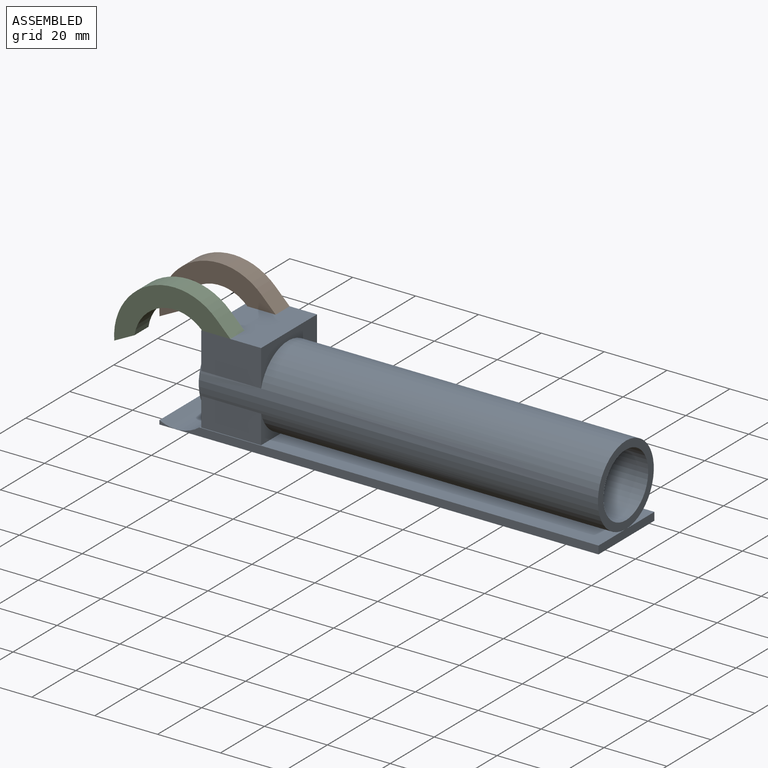
[diagram: assembled view]
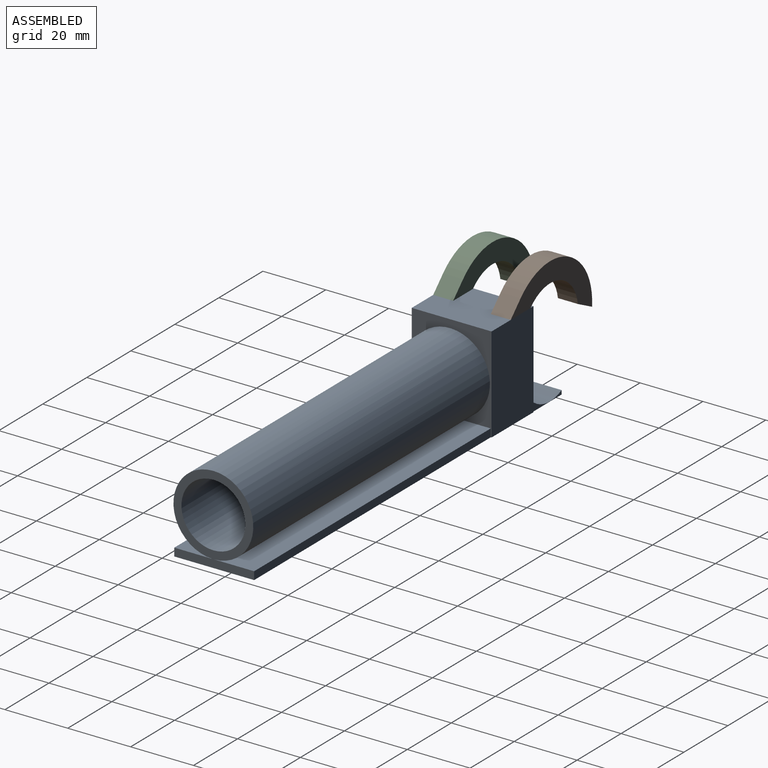
[diagram: assembled view, second angle]
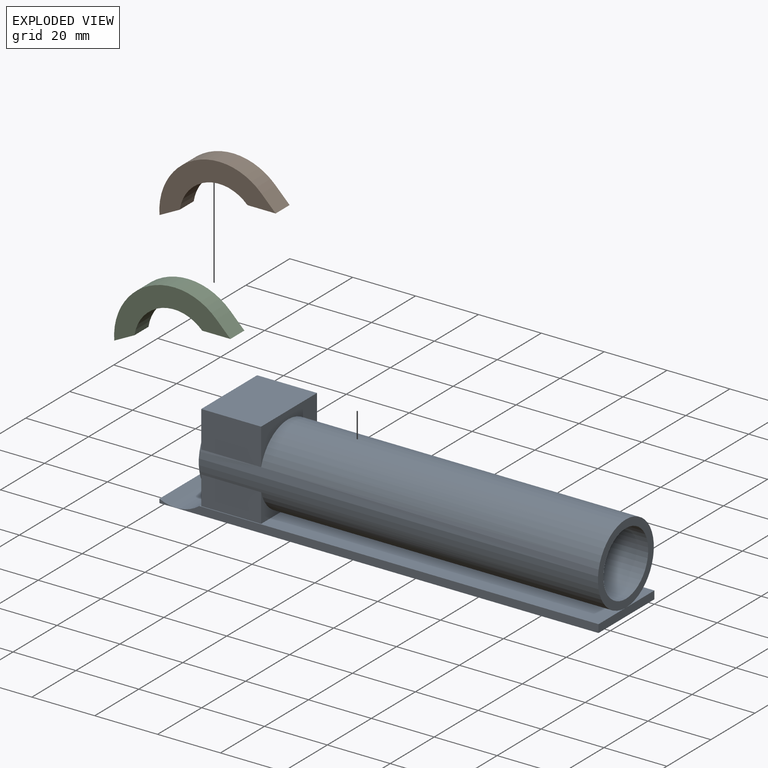
[diagram: exploded view]
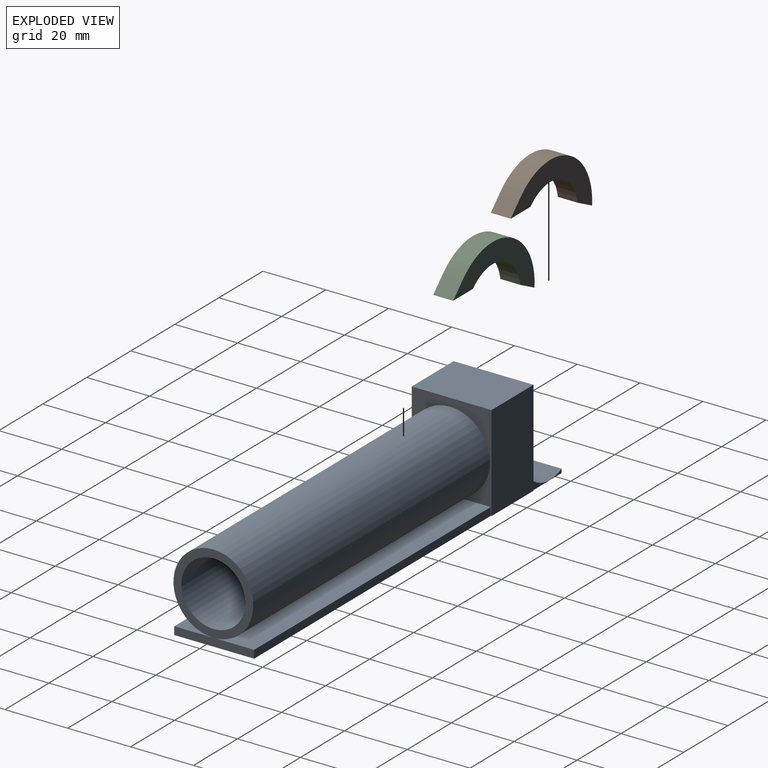
[diagram: exploded view, second angle]
ASSEMBLY  parts=3 mates=5
PART A: 20 faces, bbox 139.7x25.9x30.5 mm
  f0: plane 13.13x2.54mm, normal (0,1,0), area 9.7mm2, adj f1,f6,f8,f11,f16
  f1: plane 127.01x25.4mm, normal (0,0,1), area 1323mm2, adj f0,f2,f4,f5,f9,f11,f12,f13
  f2: cylinder r=12.7mm len=127mm, axis (1,0,0), area 8694.6mm2, adj f1,f5,f7,f9,f12,f13,f14,f15
  f3: plane 107.52x2.54mm, normal (0,1,0), area 273.1mm2, adj f5,f7,f8,f17
  f4: plane 139.7x2.54mm, normal (0,-1,0), area 331.2mm2, adj f1,f5,f6,f8,f11
  f5: plane 27.94x25.67mm, normal (1,0,0), area 246.9mm2, adj f1,f2,f3,f4,f7,f8,f10
  f6: plane 25.4x1.27mm, normal (-1,0,0), area 32.3mm2, adj f0,f4,f8,f11
  f7: plane 107.52x12.7mm, normal (0,0,1), area 1365.5mm2, adj f2,f3,f5,f17
  f8: plane 139.7x25.65mm, normal (0,0,-1), area 3553.1mm2, adj f0,f3,f4,f5,f6,f16,f17,f18
  f9: plane 25.4x25.4mm, normal (-1,0,0), area 182.4mm2, adj f1,f2,f10
  f10: cylinder r=10.16mm len=127mm, axis (-1,0,0), area 8107.3mm2, adj f5,f9
  f11: cylinder r=12.16mm len=25.4mm, axis (0,1,0), area 340.9mm2, adj f0,f1,f4,f6
  f12: plane 11.91x9.1mm, normal (1,0,0), area 29.2mm2, adj f1,f2,f13
  f13: plane 19.05x9.1mm, normal (0,-1,0), area 173.3mm2, adj f1,f2,f12,f14
  f14: plane 11.91x9.1mm, normal (-1,0,0), area 29.2mm2, adj f1,f2,f13
  f15: plane 19.05x11.64mm, normal (0,-1,0), area 221.8mm2, adj f2,f16,f17,f19
  f16: plane 30.48x25.4mm, normal (-1,0,0), area 176.9mm2, adj f0,f1,f2,f8,f15,f18,f19
  f17: plane 30.48x25.4mm, normal (1,0,0), area 176.9mm2, adj f2,f3,f7,f8,f15,f18,f19
  f18: plane 30.48x19.05mm, normal (0,1,0), area 580.6mm2, adj f8,f16,f17,f19
  f19: plane 25.4x19.05mm, normal (0,0,1), area 483.9mm2, adj f15,f16,f17,f18
PART B: 7 faces, bbox 25.4x33.4x6.4 mm
  f0: cylinder r=19.05mm len=33.45mm, axis (0,0,-1), area 293.6mm2, adj f1,f4,f5,f6
  f1: plane 6.35x6.35mm, normal (0,1,0), area 40.3mm2, adj f0,f2,f5,f6
  f2: plane 6.35x6.35mm, normal (-0.71,-0.71,0), area 57mm2, adj f1,f3,f5,f6
  f3: cylinder r=12.7mm len=20.23mm, axis (0,0,-1), area 177.9mm2, adj f2,f4,f5,f6
  f4: plane 6.86x6.35mm, normal (-0.95,-0.31,0), area 45.9mm2, adj f0,f3,f5,f6
  f5: plane 33.45x25.4mm, normal (0,0,1), area 256.1mm2, adj f0,f1,f2,f3,f4
  f6: plane 33.45x25.4mm, normal (0,0,-1), area 256.1mm2, adj f0,f1,f2,f3,f4
PART C: same geometry as B
PLACE A t=(51.45,-14.51,-46.47)mm
PLACE B rot(axis=(-0.28,-0.68,-0.68),148.6deg) t=(-12.89,-7.91,-24.97)mm
PLACE C rot(axis=(-0.28,-0.68,-0.68),148.6deg) t=(-13.94,-26.96,-24.97)mm
MATE planar A.f19 <-> C.f2  axis (0,0,1) through (4.25,-14.26,-15.99)mm
MATE planar C.f6 <-> A.f15  axis (0,-1,0) through (-17.31,-26.96,-13.35)mm
MATE parallel C.f2 <-> A.f19  axis (0,0,-1) through (-0.47,-23.78,-15.99)mm
MATE planar B.f2 <-> A.f19  axis (0,0,-1) through (0.58,-4.73,-15.99)mm
MATE planar B.f5 <-> A.f18  axis (0,1,0) through (-16.25,-1.56,-13.35)mm
